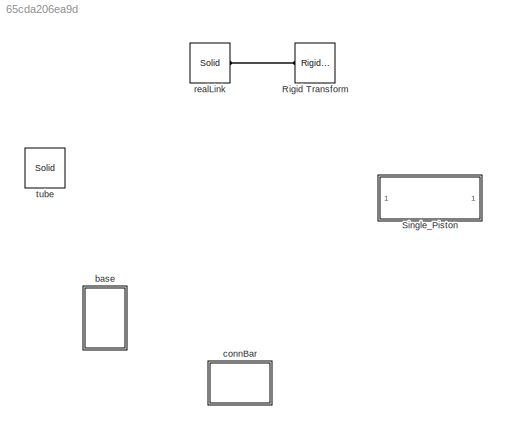
MODEL slx_65cda206ea9d
KIND library
CONFIG AbsTol = auto
CONFIG EnableMultiTasking = off
CONFIG FixedStep = auto
CONFIG MaxStep = auto
CONFIG MinStep = auto
CONFIG RelTol = 1e-3
CONFIG SampleTimeConstraint = Unconstrained
CONFIG Solver = VariableStepAuto
CONFIG SolverName = VariableStepAuto
CONFIG StartTime = 0.0
CONFIG StopTime = 10.0
BLOCK [Reference] Rigid Transform  REF=sm_lib/Frames and
Transforms/Rigid
Transform
  Ports = [0, 0, 0, 0, 0, 1, 1]
  SourceBlock = sm_lib/Frames and\nTransforms/Rigid\nTransform
  SourceType = Rigid\nTransform
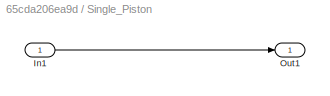
BLOCK [SubSystem] Single_Piston
  Ports = [1, 1]
  RequestExecContextInheritance = off
  Variant = off
BLOCK [Inport] Single_Piston/In1
  IconDisplay = Port number
BLOCK [Outport] Single_Piston/Out1
  IconDisplay = Port number
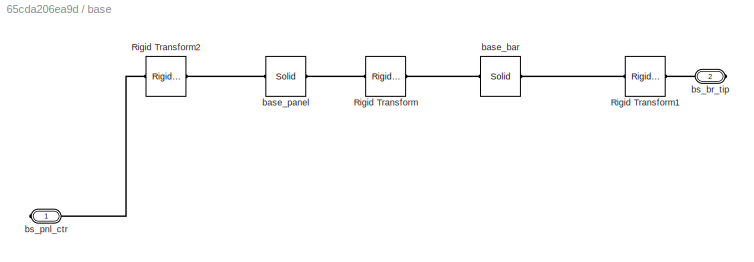
BLOCK [SubSystem] base
  Ports = [0, 0, 0, 0, 0, 0, 2]
  RequestExecContextInheritance = off
  Variant = off
BLOCK [Reference] base/Rigid Transform  REF=sm_lib/Frames and
Transforms/Rigid
Transform
  Ports = [0, 0, 0, 0, 0, 1, 1]
  SourceBlock = sm_lib/Frames and\nTransforms/Rigid\nTransform
  SourceType = Rigid\nTransform
BLOCK [Reference] base/Rigid Transform1  REF=sm_lib/Frames and
Transforms/Rigid
Transform
  Ports = [0, 0, 0, 0, 0, 1, 1]
  SourceBlock = sm_lib/Frames and\nTransforms/Rigid\nTransform
  SourceType = Rigid\nTransform
BLOCK [Reference] base/Rigid Transform2  REF=sm_lib/Frames and
Transforms/Rigid
Transform
  Ports = [0, 0, 0, 0, 0, 1, 1]
  SourceBlock = sm_lib/Frames and\nTransforms/Rigid\nTransform
  SourceType = Rigid\nTransform
BLOCK [Reference] base/base_bar  REF=sm_lib/Body Elements/Solid
  Ports = [0, 0, 0, 0, 0, 1, 1]
  SourceBlock = sm_lib/Body Elements/Solid
  SourceType = Solid
BLOCK [Reference] base/base_panel  REF=sm_lib/Body Elements/Solid
  Ports = [0, 0, 0, 0, 0, 1, 1]
  SourceBlock = sm_lib/Body Elements/Solid
  SourceType = Solid
BLOCK [PMIOPort] base/bs_br_tip
  Port = 2
  Side = Right
BLOCK [PMIOPort] base/bs_pnl_ctr
  Port = 1
  Side = Right
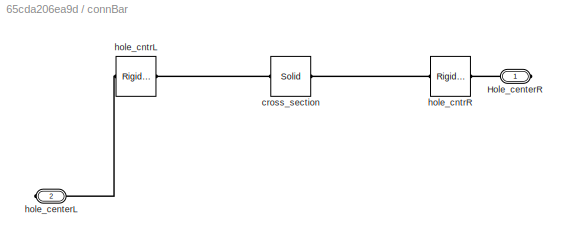
BLOCK [SubSystem] connBar
  Ports = [0, 0, 0, 0, 0, 0, 2]
  RequestExecContextInheritance = off
  Variant = off
BLOCK [PMIOPort] connBar/Hole_centerR
  Port = 1
  Side = Right
BLOCK [Reference] connBar/cross_section  REF=sm_lib/Body Elements/Solid
  Ports = [0, 0, 0, 0, 0, 1, 1]
  SourceBlock = sm_lib/Body Elements/Solid
  SourceType = Solid
BLOCK [PMIOPort] connBar/hole_centerL
  Port = 2
  Side = Right
BLOCK [Reference] connBar/hole_cntrL  REF=sm_lib/Frames and
Transforms/Rigid
Transform
  Ports = [0, 0, 0, 0, 0, 1, 1]
  SourceBlock = sm_lib/Frames and\nTransforms/Rigid\nTransform
  SourceType = Rigid\nTransform
BLOCK [Reference] connBar/hole_cntrR  REF=sm_lib/Frames and
Transforms/Rigid
Transform
  Ports = [0, 0, 0, 0, 0, 1, 1]
  SourceBlock = sm_lib/Frames and\nTransforms/Rigid\nTransform
  SourceType = Rigid\nTransform
BLOCK [Reference] realLink  REF=sm_lib/Body Elements/Solid
  Ports = [0, 0, 0, 0, 0, 1, 1]
  SourceBlock = sm_lib/Body Elements/Solid
  SourceType = Solid
BLOCK [Reference] tube  REF=sm_lib/Body Elements/Solid
  Ports = [0, 0, 0, 0, 0, 0, 1]
  SourceBlock = sm_lib/Body Elements/Solid
  SourceType = Solid
LINE Single_Piston/In1:1 -> Single_Piston/Out1:1
PLINE Rigid Transform:LConn1 -- realLink:RConn1
PLINE base/Rigid Transform1:LConn1 -- base/base_bar:LConn1
PLINE base/Rigid Transform1:RConn1 -- base/bs_br_tip:RConn1
PLINE base/Rigid Transform2:LConn1 -- base/base_panel:LConn1
PLINE base/Rigid Transform2:RConn1 -- base/bs_pnl_ctr:RConn1
PLINE base/Rigid Transform:LConn1 -- base/base_panel:RConn1
PLINE base/Rigid Transform:RConn1 -- base/base_bar:RConn1
PLINE connBar/Hole_centerR:RConn1 -- connBar/hole_cntrR:RConn1
PLINE connBar/cross_section:LConn1 -- connBar/hole_cntrL:LConn1
PLINE connBar/cross_section:RConn1 -- connBar/hole_cntrR:LConn1
PLINE connBar/hole_centerL:RConn1 -- connBar/hole_cntrL:RConn1
